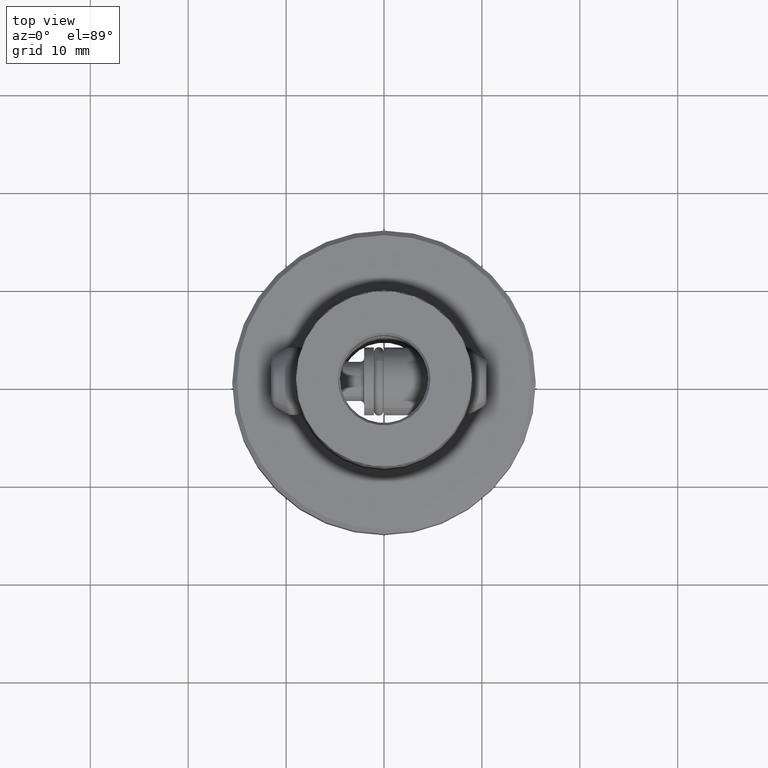
[diagram: clean part render]
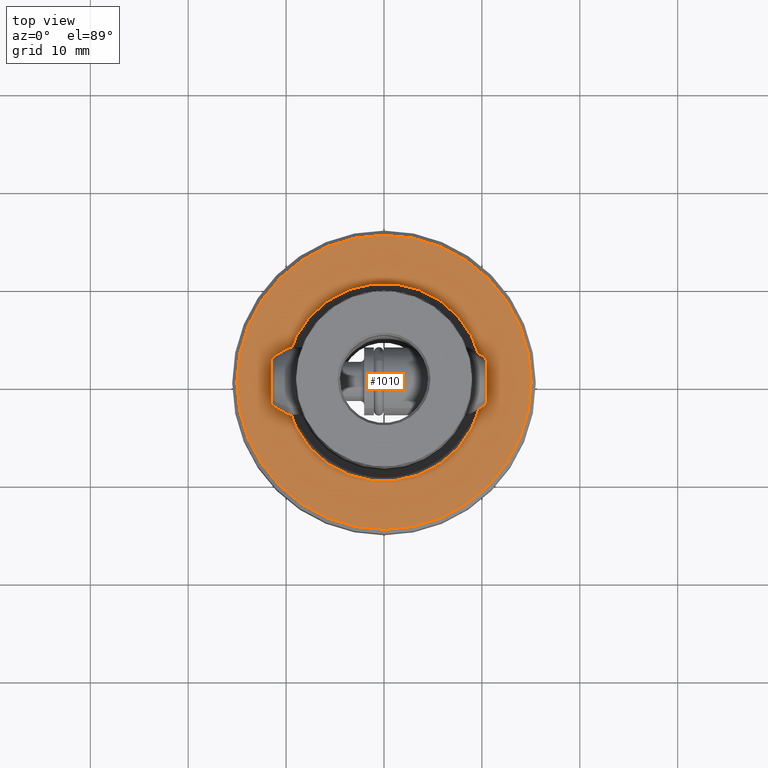
[diagram: same view with one face highlighted and labeled with its STEP entity id]
A machine part, top view. The second image highlights one B-rep face of the part: STEP entity #1010.
In plain terms, the highlighted planar face has unit normal (-0, 0, 1).
Its self-contained STEP definition (entity closure, byte-faithful):
#740=VERTEX_POINT('NONE',#2056);
#1010=ADVANCED_FACE('NONE',(#2355,#2356),#2357,.T.);
#1034=VERTEX_POINT('NONE',#2382);
#1516=EDGE_CURVE('NONE',#740,#1638,#2923,.T.);
#1526=VERTEX_POINT('NONE',#2934);
#1568=EDGE_CURVE('NONE',#1638,#740,#2979,.T.);
#1638=VERTEX_POINT('NONE',#3057);
#1726=EDGE_CURVE('NONE',#1034,#1526,#3157,.F.);
#1816=EDGE_CURVE('NONE',#1526,#1034,#3258,.F.);
#2056=CARTESIAN_POINT('',(-15.025,3.63439858855905E-014,0.0));
#2355=FACE_OUTER_BOUND('',#4139,.T.);
#2356=FACE_BOUND('',#4140,.T.);
#2357=PLANE('',#4141);
#2382=CARTESIAN_POINT('',(10.1122364103074,-2.40798674770167E-014,0.0));
#2923=CIRCLE('',#5307,15.025);
#2934=CARTESIAN_POINT('',(-10.1122364103074,2.53182183729584E-014,0.0));
#2979=CIRCLE('',#5434,15.025);
#3057=CARTESIAN_POINT('',(15.025,-3.44749304380691E-014,0.0));
#3157=CIRCLE('',#5707,10.1122364103074);
#3258=CIRCLE('',#5989,10.1122364103074);
#4139=EDGE_LOOP('',(#6744,#6745));
#4140=EDGE_LOOP('',(#6746,#6747));
#4141=AXIS2_PLACEMENT_3D('',#6748,#6749,#6750);
#5307=AXIS2_PLACEMENT_3D('',#7456,#7457,#7458);
#5434=AXIS2_PLACEMENT_3D('',#7513,#7514,#7515);
#5707=AXIS2_PLACEMENT_3D('',#7743,#7744,#7745);
#5989=AXIS2_PLACEMENT_3D('',#7887,#7888,#7889);
#6744=ORIENTED_EDGE('',*,*,#1516,.F.);
#6745=ORIENTED_EDGE('',*,*,#1568,.F.);
#6746=ORIENTED_EDGE('',*,*,#1726,.F.);
#6747=ORIENTED_EDGE('',*,*,#1816,.F.);
#6748=CARTESIAN_POINT('',(-19.0,0.0,0.0));
#6749=DIRECTION('',(-0.0,0.0,1.0));
#6750=DIRECTION('',(0.0,1.0,0.0));
#7456=CARTESIAN_POINT('',(0.0,0.0,0.0));
#7457=DIRECTION('',(0.0,0.0,-1.0));
#7458=DIRECTION('',(-1.0,2.38126033648423E-015,0.0));
#7513=CARTESIAN_POINT('',(0.0,0.0,0.0));
#7514=DIRECTION('',(0.0,0.0,-1.0));
#7515=DIRECTION('',(-1.0,2.38126033648423E-015,0.0));
#7743=CARTESIAN_POINT('',(0.0,0.0,0.0));
#7744=DIRECTION('',(0.0,0.0,-1.0));
#7745=DIRECTION('',(1.0,-2.38126033648423E-015,0.0));
#7887=CARTESIAN_POINT('',(0.0,0.0,0.0));
#7888=DIRECTION('',(0.0,0.0,-1.0));
#7889=DIRECTION('',(1.0,-2.38126033648423E-015,0.0));